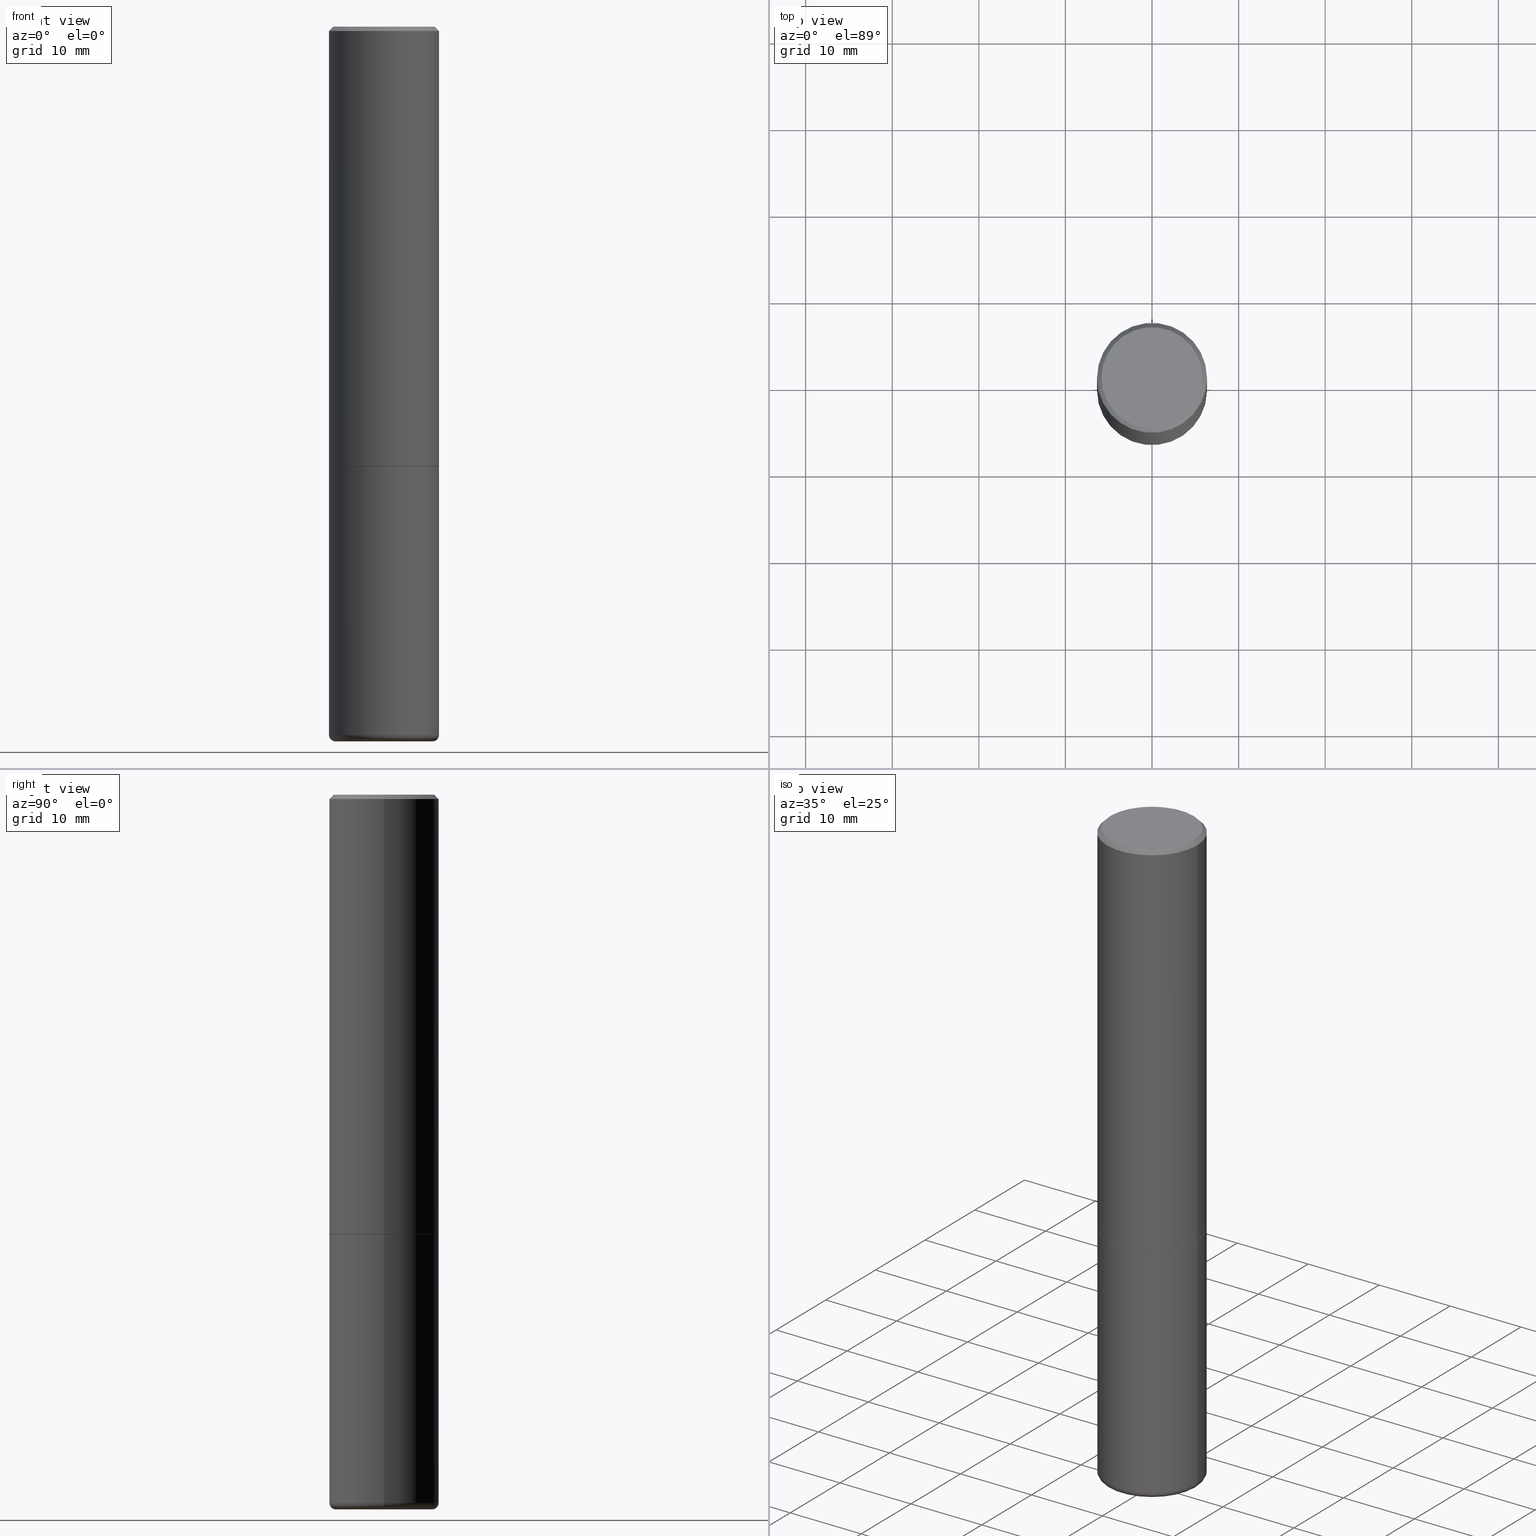
[diagram: canonical four-view strip — front | top / right | iso, engineering-drawing reading convention]
A machine part, canonical four-view strip (front | top / right | iso — engineering-drawing reading convention). The complete STEP part file that produces these views, byte-faithful:
ISO-10303-21;
HEADER;
FILE_DESCRIPTION (( 'STEP AP203' ),
    '1' );
FILE_NAME ('34301.STEP',
    '2022-11-02T20:14:43',
    ( '' ),
    ( '' ),
    'SwSTEP 2.0',
    'SolidWorks 2022',
    '' );
FILE_SCHEMA (( 'CONFIG_CONTROL_DESIGN' ));
ENDSEC;

DATA;
#1 = ORIENTED_EDGE ( 'NONE', *, *, #294, .T. ) ;
#2 = DIRECTION ( 'NONE',  ( 1.000000000000000000, -6.982962677686262766E-15, 4.883557194083111780E-29 ) ) ;
#3 = DIRECTION ( 'NONE',  ( -2.445468806185136877E-29, 3.491481338843145188E-15, 1.000000000000000000 ) ) ;
#4 = EDGE_LOOP ( 'NONE', ( #433, #490 ) ) ;
#5 = DIRECTION ( 'NONE',  ( -0.7071067811865461294, 2.468850131082242072E-15, -0.7071067811865489050 ) ) ;
#6 = COORDINATED_UNIVERSAL_TIME_OFFSET ( 5, 0, .BEHIND. ) ;
#7 = EDGE_CURVE ( 'NONE', #430, #373, #158, .T. ) ;
#8 = VECTOR ( 'NONE', #382, 39.37007874015748143 ) ;
#9 = ORIENTED_EDGE ( 'NONE', *, *, #332, .F. ) ;
#10 = AXIS2_PLACEMENT_3D ( 'NONE', #131, #168, #327 ) ;
#11 = LINE ( 'NONE', #347, #69 ) ;
#12 = ORIENTED_EDGE ( 'NONE', *, *, #254, .T. ) ;
#13 = PRODUCT ( '34301', '34301', '', ( #162 ) ) ;
#14 = EDGE_CURVE ( 'NONE', #383, #375, #177, .T. ) ;
#15 = VERTEX_POINT ( 'NONE', #160 ) ;
#16 = EDGE_CURVE ( 'NONE', #115, #35, #80, .T. ) ;
#17 = CARTESIAN_POINT ( 'NONE',  ( -0.2489999999999995828, -5.213711265643644864E-15, -2.000000000000000000 ) ) ;
#18 = AXIS2_PLACEMENT_3D ( 'NONE', #207, #253, #487 ) ;
#19 = APPROVAL_ROLE ( '' ) ;
#20 = DIRECTION ( 'NONE',  ( -2.445468806185136597E-29, 3.491481338843145583E-15, 1.000000000000000000 ) ) ;
#21 = DIRECTION ( 'NONE',  ( 1.000000000000000000, -6.982962677686266711E-15, 0.000000000000000000 ) ) ;
#22 = APPROVAL_STATUS ( 'not_yet_approved' ) ;
#23 = CARTESIAN_POINT ( 'NONE',  ( 0.2499999999999996114, -8.728703347107855476E-15, -2.000000000000000000 ) ) ;
#24 = VECTOR ( 'NONE', #369, 39.37007874015748143 ) ;
#25 = CARTESIAN_POINT ( 'NONE',  ( 4.888492143564087591E-29, -6.979471196347447369E-15, -1.998999999999999888 ) ) ;
#26 = EDGE_CURVE ( 'NONE', #35, #152, #322, .T. ) ;
#27 = PERSON ( 'UNSPECIFIED', 'UNSPECIFIED', 'UNSPECIFIED', ('UNSPECIFIED'), ('UNSPECIFIED'), ('UNSPECIFIED') ) ;
#28 = DIRECTION ( 'NONE',  ( -2.445468806185136597E-29, 3.491481338843145583E-15, 1.000000000000000000 ) ) ;
#29 = AXIS2_PLACEMENT_3D ( 'NONE', #41, #326, #473 ) ;
#30 = AXIS2_PLACEMENT_3D ( 'NONE', #267, #355, #75 ) ;
#31 = VECTOR ( 'NONE', #166, 39.37007874015748854 ) ;
#32 = EDGE_LOOP ( 'NONE', ( #426, #141, #76, #121 ) ) ;
#33 = CARTESIAN_POINT ( 'NONE',  ( 7.947204554791619182E-29, -1.134650187679537143E-14, -3.249767298070359800 ) ) ;
#34 = EDGE_CURVE ( 'NONE', #317, #15, #48, .T. ) ;
#35 = VERTEX_POINT ( 'NONE', #85 ) ;
#36 = DIRECTION ( 'NONE',  ( -2.445468806185136597E-29, 3.491481338843145583E-15, 1.000000000000000000 ) ) ;
#37 = ORIENTED_EDGE ( 'NONE', *, *, #16, .F. ) ;
#38 = DIRECTION ( 'NONE',  ( 1.000000000000000000, -6.982962677686267499E-15, 0.000000000000000000 ) ) ;
#39 = VECTOR ( 'NONE', #5, 39.37007874015748143 ) ;
#40 = VERTEX_POINT ( 'NONE', #54 ) ;
#41 = CARTESIAN_POINT ( 'NONE',  ( 4.888492143564087591E-29, -6.979471196347447369E-15, -1.998999999999999888 ) ) ;
#42 = CARTESIAN_POINT ( 'NONE',  ( 0.2499999999999994449, -1.745740669421562733E-15, 1.219044193948981146E-29 ) ) ;
#43 = FACE_OUTER_BOUND ( 'NONE', #414, .T. ) ;
#44 = APPROVAL ( #84, 'UNSPECIFIED' ) ;
#45 = DIRECTION ( 'NONE',  ( -2.445468806185136597E-29, 3.491481338843145583E-15, 1.000000000000000000 ) ) ;
#46 = DIRECTION ( 'NONE',  ( -2.445468806185136597E-29, 3.491481338843145583E-15, 1.000000000000000000 ) ) ;
#47 = SHAPE_DEFINITION_REPRESENTATION ( #214, #434 ) ;
#48 = CIRCLE ( 'NONE', #354, 0.2499999999999993894 ) ;
#49 = CIRCLE ( 'NONE', #330, 0.2299999999999993161 ) ;
#50 = EDGE_LOOP ( 'NONE', ( #102, #194, #12, #71 ) ) ;
#51 = ADVANCED_FACE ( 'NONE', ( #386 ), #204, .F. ) ;
#52 = ORIENTED_EDGE ( 'NONE', *, *, #210, .F. ) ;
#53 = LINE ( 'NONE', #360, #341 ) ;
#54 = CARTESIAN_POINT ( 'NONE',  ( 0.2499999999999994449, -1.298831456884381922E-14, -3.220001142308074549 ) ) ;
#55 = PERSON_AND_ORGANIZATION ( #27, #203 ) ;
#56 = DIRECTION ( 'NONE',  ( 1.000000000000000000, -6.982962677686266711E-15, 0.000000000000000000 ) ) ;
#57 = CONICAL_SURFACE ( 'NONE', #170, 0.2499999999999993894, 0.7853981633974463916 ) ;
#58 = PRODUCT_DEFINITION_FORMATION_WITH_SPECIFIED_SOURCE ( 'ANY', '', #13, .NOT_KNOWN. ) ;
#59 = EDGE_CURVE ( 'NONE', #15, #317, #364, .T. ) ;
#60 = DIRECTION ( 'NONE',  ( 0.7071067811865461294, -7.319954787623251312E-15, -0.7071067811865489050 ) ) ;
#61 = DIRECTION ( 'NONE',  ( -0.9993908270190957621, 6.856857904024556470E-15, -0.03489949670250108021 ) ) ;
#62 = CALENDAR_DATE ( 2022, 2, 11 ) ;
#63 = AXIS2_PLACEMENT_3D ( 'NONE', #263, #258, #442 ) ;
#64 = CC_DESIGN_PERSON_AND_ORGANIZATION_ASSIGNMENT ( #385, #301, ( #58 ) ) ;
#65 = CARTESIAN_POINT ( 'NONE',  ( 0.2499999999999995282, -1.745740669421563325E-15, 1.219044193948981566E-29 ) ) ;
#66 = DIRECTION ( 'NONE',  ( 2.445468806185136597E-29, -3.491481338843145583E-15, -1.000000000000000000 ) ) ;
#67 = EDGE_LOOP ( 'NONE', ( #178, #361, #37 ) ) ;
#68 = DIRECTION ( 'NONE',  ( 1.000000000000000000, -6.982962677686266711E-15, 4.876176775795935232E-29 ) ) ;
#69 = VECTOR ( 'NONE', #3, 39.37007874015748143 ) ;
#70 = CIRCLE ( 'NONE', #29, 0.2499999999999995559 ) ;
#71 = ORIENTED_EDGE ( 'NONE', *, *, #134, .F. ) ;
#72 = LINE ( 'NONE', #269, #291 ) ;
#73 = VERTEX_POINT ( 'NONE', #474 ) ;
#74 = CARTESIAN_POINT ( 'NONE',  ( 4.890937612370273194E-29, -6.982962677686291165E-15, -2.000000000000000000 ) ) ;
#75 = DIRECTION ( 'NONE',  ( 1.000000000000000000, -6.982962677686265922E-15, 4.876176775795935793E-29 ) ) ;
#76 = ORIENTED_EDGE ( 'NONE', *, *, #210, .T. ) ;
#77 = VECTOR ( 'NONE', #412, 39.37007874015748143 ) ;
#78 = CC_DESIGN_PERSON_AND_ORGANIZATION_ASSIGNMENT ( #309, #488, ( #457 ) ) ;
#79 = FACE_OUTER_BOUND ( 'NONE', #189, .T. ) ;
#80 = CIRCLE ( 'NONE', #172, 0.1930732039350490925 ) ;
#81 = ORIENTED_EDGE ( 'NONE', *, *, #261, .F. ) ;
#82 = DIRECTION ( 'NONE',  ( 1.000000000000000000, -6.982962677686266711E-15, 4.876176775795935232E-29 ) ) ;
#83 = EDGE_LOOP ( 'NONE', ( #310, #183, #195, #144 ) ) ;
#84 = APPROVAL_STATUS ( 'not_yet_approved' ) ;
#85 = CARTESIAN_POINT ( 'NONE',  ( -0.1930732039350490925, -9.998278899655613929E-15, -3.249767298070359800 ) ) ;
#86 = ADVANCED_FACE ( 'NONE', ( #289 ), #215, .T. ) ;
#87 = DIRECTION ( 'NONE',  ( 2.445468806185136597E-29, -3.491481338843145583E-15, -1.000000000000000000 ) ) ;
#88 = AXIS2_PLACEMENT_3D ( 'NONE', #394, #357, #471 ) ;
#89 = ORIENTED_EDGE ( 'NONE', *, *, #481, .T. ) ;
#90 = DIRECTION ( 'NONE',  ( 1.000000000000000000, -6.982962677686270655E-15, 0.000000000000000000 ) ) ;
#91 = EDGE_LOOP ( 'NONE', ( #356, #216, #365, #344 ) ) ;
#92 = PERSON_AND_ORGANIZATION_ROLE ( 'creator' ) ;
#93 = ORIENTED_EDGE ( 'NONE', *, *, #95, .T. ) ;
#94 = CARTESIAN_POINT ( 'NONE',  ( 0.2499999999999993894, -1.784954126219741850E-15, -0.02000000000000013226 ) ) ;
#95 = EDGE_CURVE ( 'NONE', #224, #373, #70, .T. ) ;
#96 = VECTOR ( 'NONE', #60, 39.37007874015748143 ) ;
#97 = TOROIDAL_SURFACE ( 'NONE', #371, 0.2200000000000001676, 0.02999999999999953398 ) ;
#98 = DESIGN_CONTEXT ( 'detailed design', #421, 'design' ) ;
#99 = FACE_OUTER_BOUND ( 'NONE', #180, .T. ) ;
#100 = ADVANCED_FACE ( 'NONE', ( #435 ), #370, .F. ) ;
#101 = DIRECTION ( 'NONE',  ( 1.000000000000000000, -6.982962677686266711E-15, 0.000000000000000000 ) ) ;
#102 = ORIENTED_EDGE ( 'NONE', *, *, #407, .F. ) ;
#103 = CIRCLE ( 'NONE', #202, 0.2499999999999994449 ) ;
#104 = SECURITY_CLASSIFICATION_LEVEL ( 'unclassified' ) ;
#105 = DIRECTION ( 'NONE',  ( -2.445468806185136597E-29, 3.491481338843145583E-15, 1.000000000000000000 ) ) ;
#106 = ORIENTED_EDGE ( 'NONE', *, *, #26, .T. ) ;
#107 = CARTESIAN_POINT ( 'NONE',  ( 4.890937612370273194E-29, -6.982962677686291165E-15, -2.000000000000000000 ) ) ;
#108 = DIRECTION ( 'NONE',  ( 1.000000000000000000, -6.982962677686267499E-15, 4.876225828469323455E-29 ) ) ;
#109 = CC_DESIGN_DATE_AND_TIME_ASSIGNMENT ( #319, #200, ( #457 ) ) ;
#110 = ORIENTED_EDGE ( 'NONE', *, *, #140, .T. ) ;
#111 = CARTESIAN_POINT ( 'NONE',  ( 0.000000000000000000, 0.000000000000000000, 0.000000000000000000 ) ) ;
#112 =( LENGTH_UNIT ( ) NAMED_UNIT ( * ) SI_UNIT ( $, .METRE. ) );
#113 = AXIS2_PLACEMENT_3D ( 'NONE', #454, #272, #314 ) ;
#114 = CC_DESIGN_APPROVAL ( #234, ( #58 ) ) ;
#115 = VERTEX_POINT ( 'NONE', #201 ) ;
#116 = FACE_OUTER_BOUND ( 'NONE', #4, .T. ) ;
#117 = EDGE_CURVE ( 'NONE', #375, #317, #159, .T. ) ;
#118 = ORIENTED_EDGE ( 'NONE', *, *, #333, .F. ) ;
#119 = DIRECTION ( 'NONE',  ( 2.438088387897960049E-29, -3.491481338843145188E-15, -1.000000000000000000 ) ) ;
#120 = CARTESIAN_POINT ( 'NONE',  ( 7.947204554791619182E-29, -1.134650187679537143E-14, -3.249767298070359800 ) ) ;
#121 = ORIENTED_EDGE ( 'NONE', *, *, #59, .F. ) ;
#122 = FACE_OUTER_BOUND ( 'NONE', #83, .T. ) ;
#123 = CIRCLE ( 'NONE', #88, 0.2499999999999996114 ) ;
#124 = LOCAL_TIME ( 16, 14, 43.00000000000000000, #329 ) ;
#125 = DIRECTION ( 'NONE',  ( 2.438088387897960049E-29, -3.491481338843145188E-15, -1.000000000000000000 ) ) ;
#126 = PERSON_AND_ORGANIZATION ( #27, #203 ) ;
#127 = FACE_OUTER_BOUND ( 'NONE', #287, .T. ) ;
#128 = VERTEX_POINT ( 'NONE', #23 ) ;
#129 = APPROVAL_DATE_TIME ( #288, #234 ) ;
#130 = ADVANCED_FACE ( 'NONE', ( #127 ), #296, .F. ) ;
#131 = CARTESIAN_POINT ( 'NONE',  ( 4.890937612370304688E-31, -6.982962677686337215E-17, -0.02000000000000013226 ) ) ;
#132 = AXIS2_PLACEMENT_3D ( 'NONE', #256, #150, #2 ) ;
#133 = DIRECTION ( 'NONE',  ( -6.982962677686266711E-15, -1.000000000000000000, 3.491481338843145583E-15 ) ) ;
#134 = EDGE_CURVE ( 'NONE', #260, #128, #123, .T. ) ;
#135 = DIRECTION ( 'NONE',  ( 1.000000000000000000, -6.982962677686269866E-15, 0.000000000000000000 ) ) ;
#136 = CARTESIAN_POINT ( 'NONE',  ( 7.947773620101693940E-29, -1.134731435124022443E-14, -3.250000000000000000 ) ) ;
#137 = CIRCLE ( 'NONE', #113, 0.2499999999999996114 ) ;
#138 = AXIS2_PLACEMENT_3D ( 'NONE', #190, #359, #424 ) ;
#139 = AXIS2_PLACEMENT_3D ( 'NONE', #285, #155, #21 ) ;
#140 = EDGE_CURVE ( 'NONE', #313, #224, #53, .T. ) ;
#141 = ORIENTED_EDGE ( 'NONE', *, *, #197, .T. ) ;
#142 = DIRECTION ( 'NONE',  ( 1.000000000000000000, -6.982962677686244622E-15, 0.000000000000000000 ) ) ;
#143 = AXIS2_PLACEMENT_3D ( 'NONE', #292, #184, #146 ) ;
#144 = ORIENTED_EDGE ( 'NONE', *, *, #140, .F. ) ;
#145 = PRODUCT_DEFINITION ( 'UNKNOWN', '', #58, #98 ) ;
#146 = DIRECTION ( 'NONE',  ( 1.000000000000000000, -6.982962677686265922E-15, 0.000000000000000000 ) ) ;
#147 = CARTESIAN_POINT ( 'NONE',  ( 0.000000000000000000, 0.000000000000000000, 0.000000000000000000 ) ) ;
#148 = CYLINDRICAL_SURFACE ( 'NONE', #315, 0.2499999999999995282 ) ;
#149 = ORIENTED_EDGE ( 'NONE', *, *, #261, .T. ) ;
#150 = DIRECTION ( 'NONE',  ( -2.445468806185136597E-29, 3.491481338843145583E-15, 1.000000000000000000 ) ) ;
#151 = FACE_OUTER_BOUND ( 'NONE', #91, .T. ) ;
#152 = VERTEX_POINT ( 'NONE', #465 ) ;
#153 = EDGE_CURVE ( 'NONE', #337, #40, #103, .T. ) ;
#154 = AXIS2_PLACEMENT_3D ( 'NONE', #120, #87, #240 ) ;
#155 = DIRECTION ( 'NONE',  ( -2.445468806185136597E-29, 3.491481338843145583E-15, 1.000000000000000000 ) ) ;
#156 = PLANE ( 'NONE',  #401 ) ;
#157 = CARTESIAN_POINT ( 'NONE',  ( 0.000000000000000000, 0.000000000000000000, 0.000000000000000000 ) ) ;
#158 = LINE ( 'NONE', #17, #229 ) ;
#159 = LINE ( 'NONE', #94, #96 ) ;
#160 = CARTESIAN_POINT ( 'NONE',  ( -0.2499999999999993894, 1.675911042644699041E-15, -0.02000000000000013226 ) ) ;
#161 = MANIFOLD_SOLID_BREP ( 'Body-Move/Copy2[1]', #259 ) ;
#162 = MECHANICAL_CONTEXT ( 'NONE', #410, 'mechanical' ) ;
#163 = CARTESIAN_POINT ( 'NONE',  ( 7.874412349394904045E-29, -1.124257389942225570E-14, -3.220001142308074549 ) ) ;
#164 = CONICAL_SURFACE ( 'NONE', #226, 0.2489999999999995828, 0.7853981633973970977 ) ;
#165 = CC_DESIGN_APPROVAL ( #443, ( #457 ) ) ;
#166 = DIRECTION ( 'NONE',  ( -0.9999619230641714207, 6.952228252019186602E-15, -0.008726535498369011531 ) ) ;
#167 = ADVANCED_FACE ( 'NONE', ( #122 ), #213, .T. ) ;
#168 = DIRECTION ( 'NONE',  ( 2.445468806185136597E-29, -3.491481338843145583E-15, -1.000000000000000000 ) ) ;
#169 = APPROVAL_ROLE ( '' ) ;
#170 = AXIS2_PLACEMENT_3D ( 'NONE', #339, #252, #293 ) ;
#171 = LOCAL_TIME ( 16, 14, 43.00000000000000000, #352 ) ;
#172 = AXIS2_PLACEMENT_3D ( 'NONE', #459, #46, #233 ) ;
#173 = FACE_OUTER_BOUND ( 'NONE', #484, .T. ) ;
#174 = DIRECTION ( 'NONE',  ( -2.445468806185136597E-29, 3.491481338843145583E-15, 1.000000000000000000 ) ) ;
#175 = ADVANCED_FACE ( 'NONE', ( #173 ), #164, .T. ) ;
#176 = CYLINDRICAL_SURFACE ( 'NONE', #482, 0.2499999999999994449 ) ;
#177 = CIRCLE ( 'NONE', #297, 0.2299999999999993161 ) ;
#178 = ORIENTED_EDGE ( 'NONE', *, *, #320, .F. ) ;
#179 = FACE_OUTER_BOUND ( 'NONE', #280, .T. ) ;
#180 = EDGE_LOOP ( 'NONE', ( #298, #408, #264, #118 ) ) ;
#181 = DIRECTION ( 'NONE',  ( -2.445468806185136597E-29, 3.491481338843145583E-15, 1.000000000000000000 ) ) ;
#182 = EDGE_CURVE ( 'NONE', #449, #152, #404, .T. ) ;
#183 = ORIENTED_EDGE ( 'NONE', *, *, #7, .T. ) ;
#184 = DIRECTION ( 'NONE',  ( -2.445468806185136597E-29, 3.491481338843145583E-15, 1.000000000000000000 ) ) ;
#185 = DIRECTION ( 'NONE',  ( -2.445468806185136597E-29, 3.491481338843145583E-15, 1.000000000000000000 ) ) ;
#186 = AXIS2_PLACEMENT_3D ( 'NONE', #136, #105, #403 ) ;
#187 = CC_DESIGN_SECURITY_CLASSIFICATION ( #457, ( #58 ) ) ;
#188 = LINE ( 'NONE', #343, #8 ) ;
#189 = EDGE_LOOP ( 'NONE', ( #423, #278, #350, #486 ) ) ;
#190 = CARTESIAN_POINT ( 'NONE',  ( 7.947773620101693940E-29, -1.134731435124022443E-14, -3.250000000000000000 ) ) ;
#191 = ORIENTED_EDGE ( 'NONE', *, *, #117, .F. ) ;
#192 = CARTESIAN_POINT ( 'NONE',  ( -0.2499999999999993894, 1.675911042644699041E-15, -0.02000000000000013226 ) ) ;
#193 = DIRECTION ( 'NONE',  ( -1.000000000000000000, 6.982962677686265922E-15, -4.876176775795935793E-29 ) ) ;
#194 = ORIENTED_EDGE ( 'NONE', *, *, #153, .T. ) ;
#195 = ORIENTED_EDGE ( 'NONE', *, *, #95, .F. ) ;
#196 = PERSON_AND_ORGANIZATION_ROLE ( 'design_owner' ) ;
#197 = EDGE_CURVE ( 'NONE', #373, #224, #324, .T. ) ;
#198 = ORIENTED_EDGE ( 'NONE', *, *, #333, .T. ) ;
#199 =( CONVERSION_BASED_UNIT ( 'INCH', #238 ) LENGTH_UNIT ( ) NAMED_UNIT ( #228 ) );
#200 = DATE_TIME_ROLE ( 'classification_date' ) ;
#201 = CARTESIAN_POINT ( 'NONE',  ( 0.1930732039350490925, -1.267108020581510942E-14, -3.249767298070359800 ) ) ;
#202 = AXIS2_PLACEMENT_3D ( 'NONE', #163, #20, #90 ) ;
#203 = ORGANIZATION ( 'UNSPECIFIED', 'UNSPECIFIED', '' ) ;
#204 = PLANE ( 'NONE',  #390 ) ;
#205 = PERSON_AND_ORGANIZATION ( #27, #203 ) ;
#206 = EDGE_CURVE ( 'NONE', #313, #430, #436, .T. ) ;
#207 = CARTESIAN_POINT ( 'NONE',  ( 7.874412349394904045E-29, -1.124257389942225570E-14, -3.220001142308074549 ) ) ;
#208 = APPROVAL_PERSON_ORGANIZATION ( #205, #443, #169 ) ;
#209 = CARTESIAN_POINT ( 'NONE',  ( 0.000000000000000000, 0.000000000000000000, 0.000000000000000000 ) ) ;
#210 = EDGE_CURVE ( 'NONE', #224, #317, #480, .T. ) ;
#211 = DIRECTION ( 'NONE',  ( -1.000000000000000000, 6.982962677686269866E-15, 0.000000000000000000 ) ) ;
#212 = ORIENTED_EDGE ( 'NONE', *, *, #14, .T. ) ;
#213 = CONICAL_SURFACE ( 'NONE', #379, 0.2489999999999995828, 0.7853981633973970977 ) ;
#214 = PRODUCT_DEFINITION_SHAPE ( 'NONE', 'NONE',  #145 ) ;
#215 = CONICAL_SURFACE ( 'NONE', #10, 0.2499999999999993894, 0.7853981633974463916 ) ;
#216 = ORIENTED_EDGE ( 'NONE', *, *, #332, .T. ) ;
#217 = LINE ( 'NONE', #65, #273 ) ;
#218 = CARTESIAN_POINT ( 'NONE',  ( 4.890937612370273194E-29, -6.982962677686291165E-15, -2.000000000000000000 ) ) ;
#219 = ADVANCED_FACE ( 'NONE', ( #307 ), #440, .T. ) ;
#220 = ORIENTED_EDGE ( 'NONE', *, *, #16, .T. ) ;
#221 = DIRECTION ( 'NONE',  ( -2.445468806185136597E-29, 3.491481338843145583E-15, 1.000000000000000000 ) ) ;
#222 = CARTESIAN_POINT ( 'NONE',  ( -1.043851414335219820E-46, 1.490343170380447200E-32, 4.268512490100411279E-18 ) ) ;
#223 = DIRECTION ( 'NONE',  ( -2.445468806185136597E-29, 3.491481338843145583E-15, 1.000000000000000000 ) ) ;
#224 = VERTEX_POINT ( 'NONE', #331 ) ;
#225 = FACE_OUTER_BOUND ( 'NONE', #67, .T. ) ;
#226 = AXIS2_PLACEMENT_3D ( 'NONE', #74, #174, #101 ) ;
#227 = AXIS2_PLACEMENT_3D ( 'NONE', #157, #323, #362 ) ;
#228 = DIMENSIONAL_EXPONENTS ( 1.000000000000000000, 0.000000000000000000, 0.000000000000000000, 0.000000000000000000, 0.000000000000000000, 0.000000000000000000, 0.000000000000000000 ) ;
#229 = VECTOR ( 'NONE', #242, 39.37007874015748143 ) ;
#230 = ORIENTED_EDGE ( 'NONE', *, *, #481, .F. ) ;
#231 = FACE_OUTER_BOUND ( 'NONE', #397, .T. ) ;
#232 =( NAMED_UNIT ( * ) SI_UNIT ( $, .STERADIAN. ) SOLID_ANGLE_UNIT ( ) );
#233 = DIRECTION ( 'NONE',  ( 1.000000000000000000, -6.982962677686269866E-15, 0.000000000000000000 ) ) ;
#234 = APPROVAL ( #311, 'UNSPECIFIED' ) ;
#235 = CARTESIAN_POINT ( 'NONE',  ( -0.2499999999999994449, -7.336411449154026516E-15, -3.220001142308074549 ) ) ;
#236 = DATE_AND_TIME ( #461, #171 ) ;
#237 = EDGE_LOOP ( 'NONE', ( #191, #395, #198, #348 ) ) ;
#238 = LENGTH_MEASURE_WITH_UNIT ( LENGTH_MEASURE( 0.02539999999999999897 ), #112 );
#239 = CONICAL_SURFACE ( 'NONE', #489, 0.1930732039350490925, 1.535889741755009918 ) ;
#240 = DIRECTION ( 'NONE',  ( -1.000000000000000000, 6.982962677686269866E-15, 0.000000000000000000 ) ) ;
#241 = APPROVAL_PERSON_ORGANIZATION ( #55, #234, #455 ) ;
#242 = DIRECTION ( 'NONE',  ( -0.7071067811865112684, 7.493145998870223209E-15, 0.7071067811865837660 ) ) ;
#243 = EDGE_CURVE ( 'NONE', #73, #35, #72, .T. ) ;
#244 = DIRECTION ( 'NONE',  ( -2.445468806185136597E-29, 3.491481338843145583E-15, 1.000000000000000000 ) ) ;
#245 = EDGE_LOOP ( 'NONE', ( #230, #220, #106, #389 ) ) ;
#246 = DATE_AND_TIME ( #276, #405 ) ;
#247 = ORIENTED_EDGE ( 'NONE', *, *, #7, .F. ) ;
#248 = PERSON_AND_ORGANIZATION ( #27, #203 ) ;
#249 = CLOSED_SHELL ( 'NONE', ( #167, #476, #281, #86, #345, #175, #387, #367 ) ) ;
#250 = AXIS2_PLACEMENT_3D ( 'NONE', #479, #181, #135 ) ;
#251 = CC_DESIGN_PERSON_AND_ORGANIZATION_ASSIGNMENT ( #248, #338, ( #58 ) ) ;
#252 = DIRECTION ( 'NONE',  ( 2.445468806185136597E-29, -3.491481338843145583E-15, -1.000000000000000000 ) ) ;
#253 = DIRECTION ( 'NONE',  ( -2.445468806185136597E-29, 3.491481338843145583E-15, 1.000000000000000000 ) ) ;
#254 = EDGE_CURVE ( 'NONE', #40, #128, #217, .T. ) ;
#255 = DIRECTION ( 'NONE',  ( 1.000000000000000000, -6.982962677686266711E-15, 0.000000000000000000 ) ) ;
#256 = CARTESIAN_POINT ( 'NONE',  ( 7.874412349394905166E-29, -1.124257389942225570E-14, -3.220001142308074993 ) ) ;
#257 = ORIENTED_EDGE ( 'NONE', *, *, #445, .T. ) ;
#258 = DIRECTION ( 'NONE',  ( 7.105427357601001859E-15, 1.000000000000000000, -3.491481338843145583E-15 ) ) ;
#259 = CLOSED_SHELL ( 'NONE', ( #485, #399, #219, #130, #468, #51, #377, #420, #100 ) ) ;
#260 = VERTEX_POINT ( 'NONE', #374 ) ;
#261 = EDGE_CURVE ( 'NONE', #35, #115, #467, .T. ) ;
#262 = CIRCLE ( 'NONE', #143, 0.2197382039350491145 ) ;
#263 = CARTESIAN_POINT ( 'NONE',  ( -0.2200000000000001676, -9.679379880750033900E-15, -3.220001142308074993 ) ) ;
#264 = ORIENTED_EDGE ( 'NONE', *, *, #34, .T. ) ;
#265 = CARTESIAN_POINT ( 'NONE',  ( 0.1930732039350490925, -1.267108020581510942E-14, -3.249767298070359800 ) ) ;
#266 = CARTESIAN_POINT ( 'NONE',  ( -0.2489999999999995828, -5.208412811295422462E-15, -2.000000000000000000 ) ) ;
#267 = CARTESIAN_POINT ( 'NONE',  ( 4.890937612370273194E-29, -6.982962677686291165E-15, -2.000000000000000000 ) ) ;
#268 = ORIENTED_EDGE ( 'NONE', *, *, #415, .T. ) ;
#269 = CARTESIAN_POINT ( 'NONE',  ( -0.1930732039350490925, -9.998278899655613929E-15, -3.249767298070359800 ) ) ;
#270 = CARTESIAN_POINT ( 'NONE',  ( 0.2197382039350491145, -1.285482785937054132E-14, -3.250000000000000000 ) ) ;
#271 = ORIENTED_EDGE ( 'NONE', *, *, #320, .T. ) ;
#272 = DIRECTION ( 'NONE',  ( -2.445468806185136597E-29, 3.491481338843145583E-15, 1.000000000000000000 ) ) ;
#273 = VECTOR ( 'NONE', #368, 39.37007874015748143 ) ;
#274 = CC_DESIGN_APPROVAL ( #44, ( #145 ) ) ;
#275 = ORIENTED_EDGE ( 'NONE', *, *, #197, .F. ) ;
#276 = CALENDAR_DATE ( 2022, 2, 11 ) ;
#277 = FACE_OUTER_BOUND ( 'NONE', #50, .T. ) ;
#278 = ORIENTED_EDGE ( 'NONE', *, *, #432, .T. ) ;
#279 = CARTESIAN_POINT ( 'NONE',  ( -0.2499999999999995559, -1.748293572161906447E-15, -1.998999999999999888 ) ) ;
#280 = EDGE_LOOP ( 'NONE', ( #93, #268, #380, #52 ) ) ;
#281 = ADVANCED_FACE ( 'NONE', ( #99 ), #57, .T. ) ;
#282 = PERSON_AND_ORGANIZATION ( #27, #203 ) ;
#283 = VECTOR ( 'NONE', #381, 39.37007874015748854 ) ;
#284 = DIRECTION ( 'NONE',  ( 0.7071067811865112684, -2.468850131081876830E-15, 0.7071067811865837660 ) ) ;
#285 = CARTESIAN_POINT ( 'NONE',  ( 4.890937612370304688E-31, -6.982962677686337215E-17, -0.02000000000000013226 ) ) ;
#286 = APPROVAL_DATE_TIME ( #236, #44 ) ;
#287 = EDGE_LOOP ( 'NONE', ( #306, #271, #81 ) ) ;
#288 = DATE_AND_TIME ( #62, #335 ) ;
#289 = FACE_OUTER_BOUND ( 'NONE', #237, .T. ) ;
#290 = DATE_AND_TIME ( #475, #124 ) ;
#291 = VECTOR ( 'NONE', #61, 39.37007874015748143 ) ;
#292 = CARTESIAN_POINT ( 'NONE',  ( 7.947773620101693940E-29, -1.134731435124022443E-14, -3.250000000000000000 ) ) ;
#293 = DIRECTION ( 'NONE',  ( -1.000000000000000000, 6.982962677686266711E-15, 0.000000000000000000 ) ) ;
#294 = EDGE_CURVE ( 'NONE', #40, #337, #441, .T. ) ;
#295 = DIRECTION ( 'NONE',  ( 1.000000000000000000, -6.982962677686266711E-15, 4.876176775795935232E-29 ) ) ;
#296 = CONICAL_SURFACE ( 'NONE', #154, 0.1930732039350490925, 1.535889741755009918 ) ;
#297 = AXIS2_PLACEMENT_3D ( 'NONE', #358, #325, #463 ) ;
#298 = ORIENTED_EDGE ( 'NONE', *, *, #445, .F. ) ;
#299 = DIRECTION ( 'NONE',  ( -2.445468806185136597E-29, 3.491481338843145583E-15, 1.000000000000000000 ) ) ;
#300 = PRODUCT_RELATED_PRODUCT_CATEGORY ( 'detail', '', ( #13 ) ) ;
#301 = PERSON_AND_ORGANIZATION_ROLE ( 'design_supplier' ) ;
#302 = CIRCLE ( 'NONE', #477, 0.02999999999999954439 ) ;
#303 =( GEOMETRIC_REPRESENTATION_CONTEXT ( 3 ) GLOBAL_UNCERTAINTY_ASSIGNED_CONTEXT ( ( #437 ) ) GLOBAL_UNIT_ASSIGNED_CONTEXT ( ( #199, #349, #232 ) ) REPRESENTATION_CONTEXT ( 'NONE', 'WORKASPACE' ) );
#304 = APPROVAL_PERSON_ORGANIZATION ( #126, #44, #19 ) ;
#305 = CARTESIAN_POINT ( 'NONE',  ( 0.2499999999999993894, -1.784954126219741850E-15, -0.02000000000000013226 ) ) ;
#306 = ORIENTED_EDGE ( 'NONE', *, *, #243, .F. ) ;
#307 = FACE_OUTER_BOUND ( 'NONE', #422, .T. ) ;
#308 = CARTESIAN_POINT ( 'NONE',  ( 0.2197382039350491145, -1.288173802818048494E-14, -3.250000000000000000 ) ) ;
#309 = PERSON_AND_ORGANIZATION ( #27, #203 ) ;
#310 = ORIENTED_EDGE ( 'NONE', *, *, #206, .T. ) ;
#311 = APPROVAL_STATUS ( 'not_yet_approved' ) ;
#312 = EDGE_CURVE ( 'NONE', #449, #40, #302, .T. ) ;
#313 = VERTEX_POINT ( 'NONE', #491 ) ;
#314 = DIRECTION ( 'NONE',  ( 1.000000000000000000, -6.982962677686265922E-15, 0.000000000000000000 ) ) ;
#315 = AXIS2_PLACEMENT_3D ( 'NONE', #316, #45, #388 ) ;
#316 = CARTESIAN_POINT ( 'NONE',  ( 0.000000000000000000, 0.000000000000000000, 0.000000000000000000 ) ) ;
#317 = VERTEX_POINT ( 'NONE', #305 ) ;
#318 = CARTESIAN_POINT ( 'NONE',  ( 1.606081415867836334E-15, 0.2299999999999993161, -8.009064516888709120E-16 ) ) ;
#319 = DATE_AND_TIME ( #464, #392 ) ;
#320 = EDGE_CURVE ( 'NONE', #73, #115, #451, .T. ) ;
#321 = ORIENTED_EDGE ( 'NONE', *, *, #254, .F. ) ;
#322 = LINE ( 'NONE', #472, #31 ) ;
#323 = DIRECTION ( 'NONE',  ( 0.000000000000000000, 0.000000000000000000, 1.000000000000000000 ) ) ;
#324 = CIRCLE ( 'NONE', #363, 0.2499999999999995559 ) ;
#325 = DIRECTION ( 'NONE',  ( -2.445468806185136597E-29, 3.491481338843145583E-15, 1.000000000000000000 ) ) ;
#326 = DIRECTION ( 'NONE',  ( -2.445468806185136597E-29, 3.491481338843145583E-15, 1.000000000000000000 ) ) ;
#327 = DIRECTION ( 'NONE',  ( -1.000000000000000000, 6.982962677686266711E-15, 0.000000000000000000 ) ) ;
#328 = CC_DESIGN_PERSON_AND_ORGANIZATION_ASSIGNMENT ( #282, #196, ( #13 ) ) ;
#329 = COORDINATED_UNIVERSAL_TIME_OFFSET ( 5, 0, .BEHIND. ) ;
#330 = AXIS2_PLACEMENT_3D ( 'NONE', #222, #28, #108 ) ;
#331 = CARTESIAN_POINT ( 'NONE',  ( 0.2499999999999995559, -8.725211865769010891E-15, -1.998999999999999888 ) ) ;
#332 = EDGE_CURVE ( 'NONE', #152, #449, #262, .T. ) ;
#333 = EDGE_CURVE ( 'NONE', #383, #15, #416, .T. ) ;
#334 = AXIS2_PLACEMENT_3D ( 'NONE', #107, #36, #255 ) ;
#335 = LOCAL_TIME ( 16, 14, 43.00000000000000000, #439 ) ;
#336 = EDGE_CURVE ( 'NONE', #128, #260, #137, .T. ) ;
#337 = VERTEX_POINT ( 'NONE', #235 ) ;
#338 = PERSON_AND_ORGANIZATION_ROLE ( 'creator' ) ;
#339 = CARTESIAN_POINT ( 'NONE',  ( 4.890937612370304688E-31, -6.982962677686337215E-17, -0.02000000000000013226 ) ) ;
#340 = CARTESIAN_POINT ( 'NONE',  ( -0.2299999999999993161, 1.640996229256267786E-15, 4.268512490089056766E-18 ) ) ;
#341 = VECTOR ( 'NONE', #284, 39.37007874015748143 ) ;
#342 = ORIENTED_EDGE ( 'NONE', *, *, #26, .F. ) ;
#343 = CARTESIAN_POINT ( 'NONE',  ( -0.2499999999999995282, 1.776356839400247112E-15, -1.229733772563724063E-29 ) ) ;
#344 = ORIENTED_EDGE ( 'NONE', *, *, #153, .F. ) ;
#345 = ADVANCED_FACE ( 'NONE', ( #351 ), #384, .T. ) ;
#346 = CARTESIAN_POINT ( 'NONE',  ( 0.2299999999999993161, -1.681434332853594870E-15, 4.268512490111905999E-18 ) ) ;
#347 = CARTESIAN_POINT ( 'NONE',  ( -0.2499999999999994449, 1.776356839400246520E-15, -1.229733772563723783E-29 ) ) ;
#348 = ORIENTED_EDGE ( 'NONE', *, *, #59, .T. ) ;
#349 =( NAMED_UNIT ( * ) PLANE_ANGLE_UNIT ( ) SI_UNIT ( $, .RADIAN. ) );
#350 = ORIENTED_EDGE ( 'NONE', *, *, #294, .F. ) ;
#351 = FACE_OUTER_BOUND ( 'NONE', #32, .T. ) ;
#352 = COORDINATED_UNIVERSAL_TIME_OFFSET ( 5, 0, .BEHIND. ) ;
#353 = TOROIDAL_SURFACE ( 'NONE', #132, 0.2200000000000001676, 0.02999999999999953398 ) ;
#354 = AXIS2_PLACEMENT_3D ( 'NONE', #466, #400, #56 ) ;
#355 = DIRECTION ( 'NONE',  ( -2.438088387897960049E-29, 3.491481338843145188E-15, 1.000000000000000000 ) ) ;
#356 = ORIENTED_EDGE ( 'NONE', *, *, #432, .F. ) ;
#357 = DIRECTION ( 'NONE',  ( -2.445468806185136597E-29, 3.491481338843145583E-15, 1.000000000000000000 ) ) ;
#358 = CARTESIAN_POINT ( 'NONE',  ( -1.043851414335219820E-46, 1.490343170380447200E-32, 4.268512490100411279E-18 ) ) ;
#359 = DIRECTION ( 'NONE',  ( 2.445468806185136597E-29, -3.491481338843145583E-15, -1.000000000000000000 ) ) ;
#360 = CARTESIAN_POINT ( 'NONE',  ( 0.2489999999999995828, -8.721720384430167884E-15, -2.000000000000000000 ) ) ;
#361 = ORIENTED_EDGE ( 'NONE', *, *, #243, .T. ) ;
#362 = DIRECTION ( 'NONE',  ( 1.000000000000000000, 0.000000000000000000, 0.000000000000000000 ) ) ;
#363 = AXIS2_PLACEMENT_3D ( 'NONE', #25, #221, #38 ) ;
#364 = CIRCLE ( 'NONE', #139, 0.2499999999999993894 ) ;
#365 = ORIENTED_EDGE ( 'NONE', *, *, #312, .T. ) ;
#366 = DIRECTION ( 'NONE',  ( 2.445468806185136597E-29, -3.491481338843145583E-15, -1.000000000000000000 ) ) ;
#367 = ADVANCED_FACE ( 'NONE', ( #231 ), #156, .F. ) ;
#368 = DIRECTION ( 'NONE',  ( -2.445468806185136877E-29, 3.491481338843145188E-15, 1.000000000000000000 ) ) ;
#369 = DIRECTION ( 'NONE',  ( -2.445468806185136877E-29, 3.491481338843145188E-15, 1.000000000000000000 ) ) ;
#370 = CONICAL_SURFACE ( 'NONE', #417, 0.2197382039350491145, 1.562069680534929894 ) ;
#371 = AXIS2_PLACEMENT_3D ( 'NONE', #462, #223, #378 ) ;
#372 = ORIENTED_EDGE ( 'NONE', *, *, #407, .T. ) ;
#373 = VERTEX_POINT ( 'NONE', #279 ) ;
#374 = CARTESIAN_POINT ( 'NONE',  ( -0.2499999999999996114, -7.336411449154026516E-15, -2.000000000000000000 ) ) ;
#375 = VERTEX_POINT ( 'NONE', #346 ) ;
#376 = DIRECTION ( 'NONE',  ( -2.445468806185136597E-29, 3.491481338843145583E-15, 1.000000000000000000 ) ) ;
#377 = ADVANCED_FACE ( 'NONE', ( #277 ), #148, .T. ) ;
#378 = DIRECTION ( 'NONE',  ( 1.000000000000000000, -6.982962677686262766E-15, 4.883557194083111780E-29 ) ) ;
#379 = AXIS2_PLACEMENT_3D ( 'NONE', #429, #244, #396 ) ;
#380 = ORIENTED_EDGE ( 'NONE', *, *, #34, .F. ) ;
#381 = DIRECTION ( 'NONE',  ( 0.9999619230641714207, -6.890705306874825328E-15, -0.008726535498369011531 ) ) ;
#382 = DIRECTION ( 'NONE',  ( -2.445468806185136877E-29, 3.491481338843145188E-15, 1.000000000000000000 ) ) ;
#383 = VERTEX_POINT ( 'NONE', #340 ) ;
#384 = CYLINDRICAL_SURFACE ( 'NONE', #427, 0.2499999999999994449 ) ;
#385 = PERSON_AND_ORGANIZATION ( #27, #203 ) ;
#386 = FACE_OUTER_BOUND ( 'NONE', #453, .T. ) ;
#387 = ADVANCED_FACE ( 'NONE', ( #116 ), #458, .F. ) ;
#388 = DIRECTION ( 'NONE',  ( 1.000000000000000000, -6.982962677686266711E-15, 4.876176775795935232E-29 ) ) ;
#389 = ORIENTED_EDGE ( 'NONE', *, *, #182, .F. ) ;
#390 = AXIS2_PLACEMENT_3D ( 'NONE', #456, #125, #193 ) ;
#391 = CIRCLE ( 'NONE', #448, 0.2489999999999995828 ) ;
#392 = LOCAL_TIME ( 16, 14, 43.00000000000000000, #492 ) ;
#393 = APPROVAL_DATE_TIME ( #290, #443 ) ;
#394 = CARTESIAN_POINT ( 'NONE',  ( 4.890937612370273194E-29, -6.982962677686291165E-15, -2.000000000000000000 ) ) ;
#395 = ORIENTED_EDGE ( 'NONE', *, *, #14, .F. ) ;
#396 = DIRECTION ( 'NONE',  ( 1.000000000000000000, -6.982962677686266711E-15, 0.000000000000000000 ) ) ;
#397 = EDGE_LOOP ( 'NONE', ( #212, #257 ) ) ;
#398 = DATE_TIME_ROLE ( 'creation_date' ) ;
#399 = ADVANCED_FACE ( 'NONE', ( #79 ), #97, .T. ) ;
#400 = DIRECTION ( 'NONE',  ( -2.445468806185136597E-29, 3.491481338843145583E-15, 1.000000000000000000 ) ) ;
#401 = AXIS2_PLACEMENT_3D ( 'NONE', #318, #119, #460 ) ;
#402 = CC_DESIGN_DATE_AND_TIME_ASSIGNMENT ( #246, #398, ( #145 ) ) ;
#403 = DIRECTION ( 'NONE',  ( 1.000000000000000000, -6.982962677686265922E-15, 0.000000000000000000 ) ) ;
#404 = CIRCLE ( 'NONE', #186, 0.2197382039350491145 ) ;
#405 = LOCAL_TIME ( 16, 14, 43.00000000000000000, #6 ) ;
#406 = DIRECTION ( 'NONE',  ( 1.000000000000000000, -6.982962677686266711E-15, 0.000000000000000000 ) ) ;
#407 = EDGE_CURVE ( 'NONE', #337, #260, #188, .T. ) ;
#408 = ORIENTED_EDGE ( 'NONE', *, *, #117, .T. ) ;
#409 = CIRCLE ( 'NONE', #63, 0.02999999999999954439 ) ;
#410 = APPLICATION_CONTEXT ( 'configuration controlled 3d designs of mechanical parts and assemblies' ) ;
#411 = ORIENTED_EDGE ( 'NONE', *, *, #336, .T. ) ;
#412 = DIRECTION ( 'NONE',  ( 0.9993908270190957621, -6.978169709227541488E-15, -0.03489949670250108021 ) ) ;
#413 = CC_DESIGN_PERSON_AND_ORGANIZATION_ASSIGNMENT ( #431, #92, ( #145 ) ) ;
#414 = EDGE_LOOP ( 'NONE', ( #149, #89, #9, #342 ) ) ;
#415 = EDGE_CURVE ( 'NONE', #373, #15, #11, .T. ) ;
#416 = LINE ( 'NONE', #192, #39 ) ;
#417 = AXIS2_PLACEMENT_3D ( 'NONE', #425, #366, #438 ) ;
#418 = ORIENTED_EDGE ( 'NONE', *, *, #134, .T. ) ;
#419 = DIRECTION ( 'NONE',  ( -2.445468806185136597E-29, 3.491481338843145583E-15, 1.000000000000000000 ) ) ;
#420 = ADVANCED_FACE ( 'NONE', ( #151 ), #353, .T. ) ;
#421 = APPLICATION_CONTEXT ( 'configuration controlled 3d designs of mechanical parts and assemblies' ) ;
#422 = EDGE_LOOP ( 'NONE', ( #1, #372, #444, #321 ) ) ;
#423 = ORIENTED_EDGE ( 'NONE', *, *, #182, .T. ) ;
#424 = DIRECTION ( 'NONE',  ( -1.000000000000000000, 6.982962677686265922E-15, 0.000000000000000000 ) ) ;
#425 = CARTESIAN_POINT ( 'NONE',  ( 7.947773620101693940E-29, -1.134731435124022443E-14, -3.250000000000000000 ) ) ;
#426 = ORIENTED_EDGE ( 'NONE', *, *, #415, .F. ) ;
#427 = AXIS2_PLACEMENT_3D ( 'NONE', #111, #419, #82 ) ;
#428 = APPLICATION_PROTOCOL_DEFINITION ( 'international standard', 'config_control_design', 1994, #410 ) ;
#429 = CARTESIAN_POINT ( 'NONE',  ( 4.890937612370273194E-29, -6.982962677686291165E-15, -2.000000000000000000 ) ) ;
#430 = VERTEX_POINT ( 'NONE', #266 ) ;
#431 = PERSON_AND_ORGANIZATION ( #27, #203 ) ;
#432 = EDGE_CURVE ( 'NONE', #152, #337, #409, .T. ) ;
#433 = ORIENTED_EDGE ( 'NONE', *, *, #206, .F. ) ;
#434 = ADVANCED_BREP_SHAPE_REPRESENTATION ( '34301', ( #161, #483, #227 ), #303 ) ;
#435 = FACE_OUTER_BOUND ( 'NONE', #245, .T. ) ;
#436 = CIRCLE ( 'NONE', #334, 0.2489999999999995828 ) ;
#437 = UNCERTAINTY_MEASURE_WITH_UNIT (LENGTH_MEASURE( 1.000000000000000082E-05 ), #199, 'distance_accuracy_value', 'NONE');
#438 = DIRECTION ( 'NONE',  ( -1.000000000000000000, 6.982962677686265922E-15, 0.000000000000000000 ) ) ;
#439 = COORDINATED_UNIVERSAL_TIME_OFFSET ( 5, 0, .BEHIND. ) ;
#440 = CYLINDRICAL_SURFACE ( 'NONE', #447, 0.2499999999999995282 ) ;
#441 = CIRCLE ( 'NONE', #18, 0.2499999999999994449 ) ;
#442 = DIRECTION ( 'NONE',  ( -1.000000000000000000, 7.105427357600968727E-15, 0.000000000000000000 ) ) ;
#443 = APPROVAL ( #22, 'UNSPECIFIED' ) ;
#444 = ORIENTED_EDGE ( 'NONE', *, *, #336, .F. ) ;
#445 = EDGE_CURVE ( 'NONE', #375, #383, #49, .T. ) ;
#446 = ORIENTED_EDGE ( 'NONE', *, *, #450, .T. ) ;
#447 = AXIS2_PLACEMENT_3D ( 'NONE', #209, #376, #295 ) ;
#448 = AXIS2_PLACEMENT_3D ( 'NONE', #218, #185, #406 ) ;
#449 = VERTEX_POINT ( 'NONE', #308 ) ;
#450 = EDGE_CURVE ( 'NONE', #430, #313, #391, .T. ) ;
#451 = LINE ( 'NONE', #265, #77 ) ;
#452 = LINE ( 'NONE', #270, #283 ) ;
#453 = EDGE_LOOP ( 'NONE', ( #411, #418 ) ) ;
#454 = CARTESIAN_POINT ( 'NONE',  ( 4.890937612370273194E-29, -6.982962677686291165E-15, -2.000000000000000000 ) ) ;
#455 = APPROVAL_ROLE ( '' ) ;
#456 = CARTESIAN_POINT ( 'NONE',  ( 1.745740669421612826E-15, 0.2499999999999926448, -2.000000000000000888 ) ) ;
#457 = SECURITY_CLASSIFICATION ( '', '', #104 ) ;
#458 = PLANE ( 'NONE',  #30 ) ;
#459 = CARTESIAN_POINT ( 'NONE',  ( 7.947204554791619182E-29, -1.134650187679537143E-14, -3.249767298070359800 ) ) ;
#460 = DIRECTION ( 'NONE',  ( -1.000000000000000000, 6.982962677686265922E-15, -4.876176775795935793E-29 ) ) ;
#461 = CALENDAR_DATE ( 2022, 2, 11 ) ;
#462 = CARTESIAN_POINT ( 'NONE',  ( 7.874412349394905166E-29, -1.124257389942225570E-14, -3.220001142308074993 ) ) ;
#463 = DIRECTION ( 'NONE',  ( 1.000000000000000000, -6.982962677686267499E-15, 4.876225828469323455E-29 ) ) ;
#464 = CALENDAR_DATE ( 2022, 2, 11 ) ;
#465 = CARTESIAN_POINT ( 'NONE',  ( -0.2197382039350491145, -9.626098782756011188E-15, -3.250000000000000000 ) ) ;
#466 = CARTESIAN_POINT ( 'NONE',  ( 4.890937612370304688E-31, -6.982962677686337215E-17, -0.02000000000000013226 ) ) ;
#467 = CIRCLE ( 'NONE', #250, 0.1930732039350490925 ) ;
#468 = ADVANCED_FACE ( 'NONE', ( #225 ), #239, .F. ) ;
#469 = APPLICATION_PROTOCOL_DEFINITION ( 'international standard', 'config_control_design', 1994, #421 ) ;
#470 = CONICAL_SURFACE ( 'NONE', #138, 0.2197382039350491145, 1.562069680534929894 ) ;
#471 = DIRECTION ( 'NONE',  ( 1.000000000000000000, -6.982962677686265922E-15, 0.000000000000000000 ) ) ;
#472 = CARTESIAN_POINT ( 'NONE',  ( -0.2197382039350491145, -9.812890674299962335E-15, -3.250000000000000000 ) ) ;
#473 = DIRECTION ( 'NONE',  ( 1.000000000000000000, -6.982962677686267499E-15, 0.000000000000000000 ) ) ;
#474 = CARTESIAN_POINT ( 'NONE',  ( 7.930716556418764265E-29, -1.132296138489128416E-14, -3.243025033220710451 ) ) ;
#475 = CALENDAR_DATE ( 2022, 2, 11 ) ;
#476 = ADVANCED_FACE ( 'NONE', ( #179 ), #176, .T. ) ;
#477 = AXIS2_PLACEMENT_3D ( 'NONE', #478, #133, #142 ) ;
#478 = CARTESIAN_POINT ( 'NONE',  ( 0.2200000000000001676, -1.277882568851323406E-14, -3.220001142308074993 ) ) ;
#479 = CARTESIAN_POINT ( 'NONE',  ( 7.947204554791619182E-29, -1.134650187679537143E-14, -3.249767298070359800 ) ) ;
#480 = LINE ( 'NONE', #42, #24 ) ;
#481 = EDGE_CURVE ( 'NONE', #115, #449, #452, .T. ) ;
#482 = AXIS2_PLACEMENT_3D ( 'NONE', #147, #299, #68 ) ;
#483 = MANIFOLD_SOLID_BREP ( 'Body-Move/Copy2[2]', #249 ) ;
#484 = EDGE_LOOP ( 'NONE', ( #247, #446, #110, #275 ) ) ;
#485 = ADVANCED_FACE ( 'NONE', ( #43 ), #470, .F. ) ;
#486 = ORIENTED_EDGE ( 'NONE', *, *, #312, .F. ) ;
#487 = DIRECTION ( 'NONE',  ( 1.000000000000000000, -6.982962677686270655E-15, 0.000000000000000000 ) ) ;
#488 = PERSON_AND_ORGANIZATION_ROLE ( 'classification_officer' ) ;
#489 = AXIS2_PLACEMENT_3D ( 'NONE', #33, #66, #211 ) ;
#490 = ORIENTED_EDGE ( 'NONE', *, *, #450, .F. ) ;
#491 = CARTESIAN_POINT ( 'NONE',  ( 0.2489999999999995828, -8.721720384430167884E-15, -2.000000000000000000 ) ) ;
#492 = COORDINATED_UNIVERSAL_TIME_OFFSET ( 5, 0, .BEHIND. ) ;
ENDSEC;
END-ISO-10303-21;
